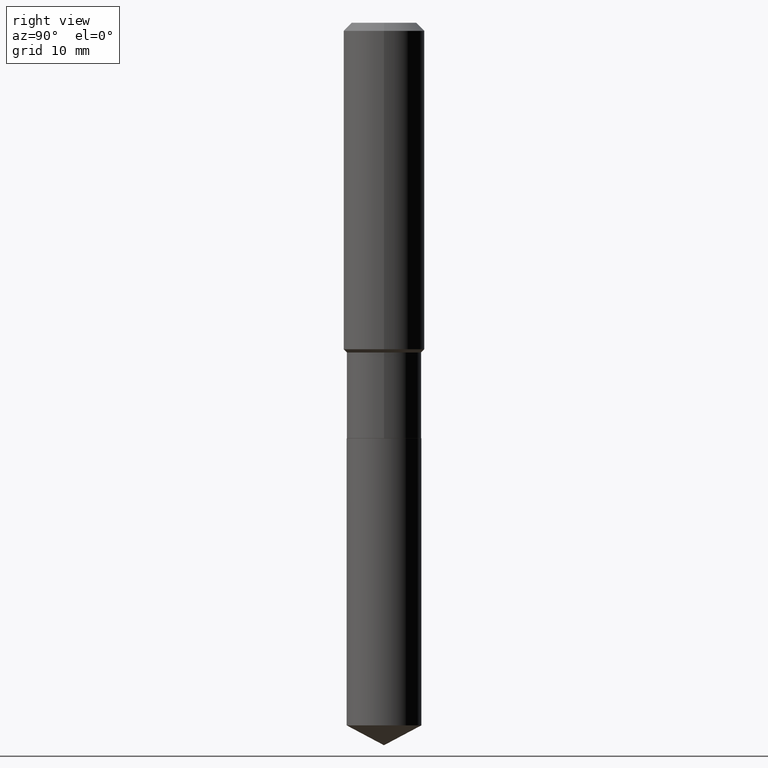
[diagram: clean part render]
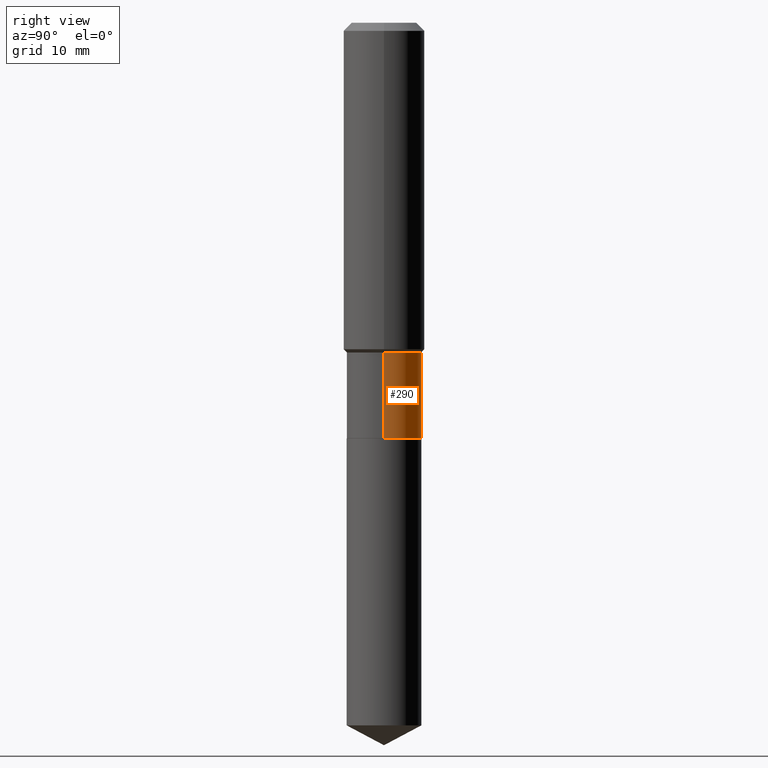
[diagram: same view with one face highlighted and labeled with its STEP entity id]
A machine part, right view. The second image highlights one B-rep face of the part: STEP entity #290.
In plain terms, the highlighted cylindrical surface (partial cylindrical patch) has radius 4.5999 mm, axis along (-0, 0, 1).
Its self-contained STEP definition (entity closure, byte-faithful):
#13 = EDGE_CURVE ( 'NONE', #374, #465, #192, .T. ) ;
#30 = DIRECTION ( 'NONE',  ( -2.445468806185136597E-29, 3.491481338843145583E-15, 1.000000000000000000 ) ) ;
#39 = LINE ( 'NONE', #266, #140 ) ;
#52 = ORIENTED_EDGE ( 'NONE', *, *, #305, .T. ) ;
#56 = ORIENTED_EDGE ( 'NONE', *, *, #172, .F. ) ;
#66 = CARTESIAN_POINT ( 'NONE',  ( 4.928108738224286960E-29, -7.036033194036706451E-15, -2.015199999999999658 ) ) ;
#105 = AXIS2_PLACEMENT_3D ( 'NONE', #66, #30, #490 ) ;
#123 = ORIENTED_EDGE ( 'NONE', *, *, #147, .T. ) ;
#125 = FACE_OUTER_BOUND ( 'NONE', #127, .T. ) ;
#127 = EDGE_LOOP ( 'NONE', ( #123, #52, #242, #56 ) ) ;
#140 = VECTOR ( 'NONE', #301, 39.37007874015748143 ) ;
#147 = EDGE_CURVE ( 'NONE', #201, #314, #174, .T. ) ;
#172 = EDGE_CURVE ( 'NONE', #201, #374, #270, .T. ) ;
#174 = CIRCLE ( 'NONE', #105, 0.1810999999999999832 ) ;
#176 = DIRECTION ( 'NONE',  ( -2.445468806185136597E-29, 3.491481338843145583E-15, 1.000000000000000000 ) ) ;
#192 = CIRCLE ( 'NONE', #463, 0.1810999999999999832 ) ;
#201 = VERTEX_POINT ( 'NONE', #300 ) ;
#228 = VECTOR ( 'NONE', #298, 39.37007874015748143 ) ;
#235 = CARTESIAN_POINT ( 'NONE',  ( -0.1810999999999999832, -5.023012181095790067E-15, -2.015199999999999658 ) ) ;
#236 = CARTESIAN_POINT ( 'NONE',  ( 0.000000000000000000, 0.000000000000000000, 0.000000000000000000 ) ) ;
#242 = ORIENTED_EDGE ( 'NONE', *, *, #13, .F. ) ;
#248 = CARTESIAN_POINT ( 'NONE',  ( -0.1810999999999999832, -5.023012181095790067E-15, -1.599199999999999733 ) ) ;
#266 = CARTESIAN_POINT ( 'NONE',  ( -0.1810999999999999832, 1.286792894461541317E-15, -8.908191448451633036E-30 ) ) ;
#270 = LINE ( 'NONE', #339, #228 ) ;
#281 = CARTESIAN_POINT ( 'NONE',  ( 0.1810999999999999832, -6.848191498006940046E-15, -1.599199999999999733 ) ) ;
#285 = AXIS2_PLACEMENT_3D ( 'NONE', #236, #310, #350 ) ;
#290 = ADVANCED_FACE ( 'NONE', ( #125 ), #391, .T. ) ;
#298 = DIRECTION ( 'NONE',  ( -2.445468806185136877E-29, 3.491481338843145188E-15, 1.000000000000000000 ) ) ;
#300 = CARTESIAN_POINT ( 'NONE',  ( 0.1810999999999999832, -8.300647734965688602E-15, -2.015199999999999658 ) ) ;
#301 = DIRECTION ( 'NONE',  ( -2.445468806185136877E-29, 3.491481338843145188E-15, 1.000000000000000000 ) ) ;
#305 = EDGE_CURVE ( 'NONE', #314, #465, #39, .T. ) ;
#310 = DIRECTION ( 'NONE',  ( -2.445468806185136597E-29, 3.491481338843145583E-15, 1.000000000000000000 ) ) ;
#314 = VERTEX_POINT ( 'NONE', #235 ) ;
#339 = CARTESIAN_POINT ( 'NONE',  ( 0.1810999999999999832, -1.264614540928982742E-15, 8.830756140966438813E-30 ) ) ;
#350 = DIRECTION ( 'NONE',  ( 1.000000000000000000, -6.982962677686266711E-15, 4.876176775795935793E-29 ) ) ;
#374 = VERTEX_POINT ( 'NONE', #281 ) ;
#391 = CYLINDRICAL_SURFACE ( 'NONE', #285, 0.1810999999999999832 ) ;
#413 = CARTESIAN_POINT ( 'NONE',  ( 3.910793714851269512E-29, -5.583576957077957107E-15, -1.599199999999999733 ) ) ;
#442 = DIRECTION ( 'NONE',  ( 1.000000000000000000, -6.982962677686267499E-15, 0.000000000000000000 ) ) ;
#463 = AXIS2_PLACEMENT_3D ( 'NONE', #413, #176, #442 ) ;
#465 = VERTEX_POINT ( 'NONE', #248 ) ;
#490 = DIRECTION ( 'NONE',  ( 1.000000000000000000, -6.982962677686267499E-15, 0.000000000000000000 ) ) ;